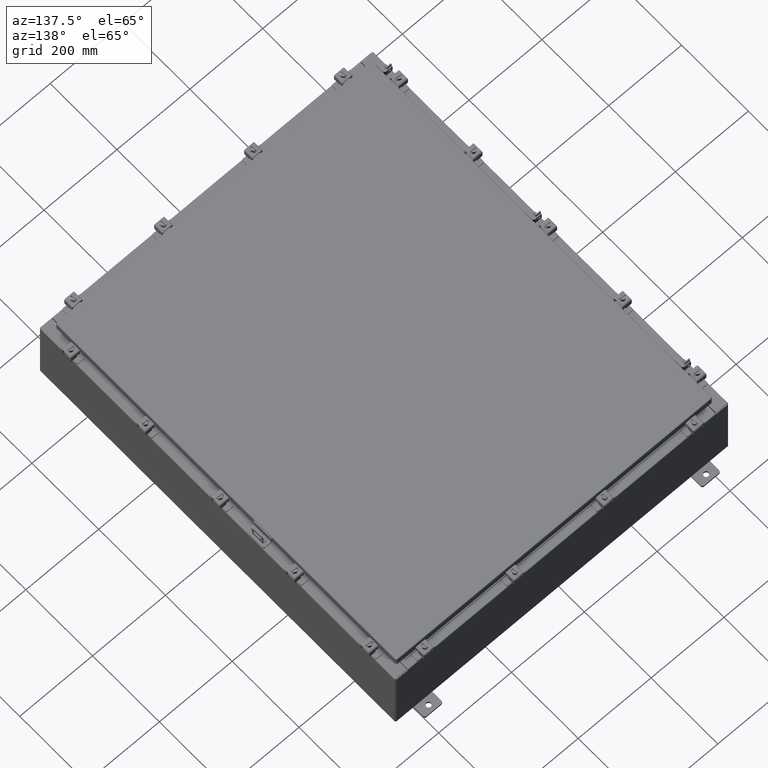
[diagram: clean part render]
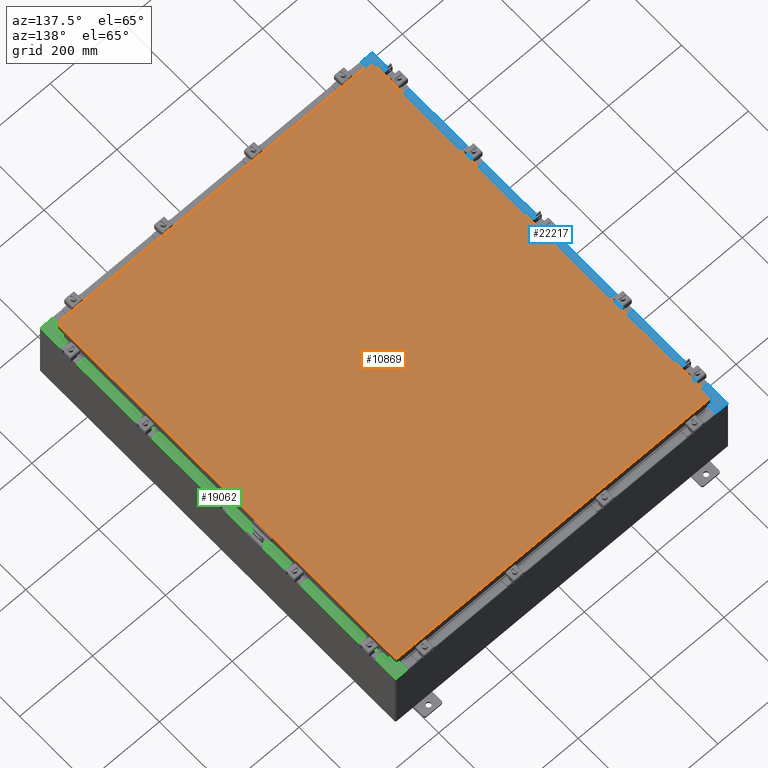
[diagram: same view with three faces highlighted in distinct colors, each labeled with its STEP entity id]
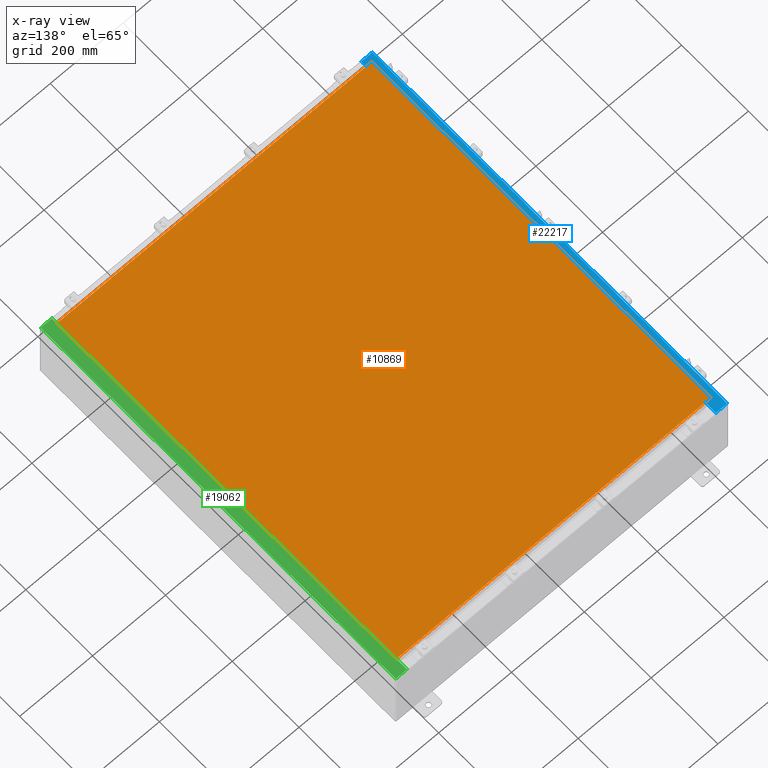
[diagram: x-ray of the same camera — body ghosted, the three highlighted faces saturated]
A machine part, auxiliary view with three faces highlighted in distinct colors.
The next image is the same camera in x-ray (body ghosted, the three faces saturated) — at least one of them is partly hidden behind the body in this view.
Their STEP definitions:

[orange] entity #10869 — the highlighted planar face has unit normal (0, 0, -1).
#180 = DIRECTION ( 'NONE',  ( 0.0000000000000000000, -1.000000000000000000, 0.0000000000000000000 ) ) ;
#733 = ORIENTED_EDGE ( 'NONE', *, *, #21136, .T. ) ;
#1266 = DIRECTION ( 'NONE',  ( -1.000000000000000000, -0.0000000000000000000, -0.0000000000000000000 ) ) ;
#1399 = DIRECTION ( 'NONE',  ( 1.000000000000000000, -0.0000000000000000000, -0.0000000000000000000 ) ) ;
#1971 = CARTESIAN_POINT ( 'NONE',  ( 16.99029999999999800, -20.00630000000000300, -2.048885995248197400E-016 ) ) ;
#2619 = EDGE_LOOP ( 'NONE', ( #23379, #733, #11995, #19405 ) ) ;
#5185 = CARTESIAN_POINT ( 'NONE',  ( 0.0000000000000000000, 0.0000000000000000000, 0.0000000000000000000 ) ) ;
#5270 = DIRECTION ( 'NONE',  ( -1.000000000000000000, 0.0000000000000000000, -0.0000000000000000000 ) ) ;
#5436 = LINE ( 'NONE', #13845, #9754 ) ;
#5627 = CARTESIAN_POINT ( 'NONE',  ( -16.99029999999999800, -20.00630000000000300, -2.364755919515627700E-015 ) ) ;
#6271 = DIRECTION ( 'NONE',  ( 0.0000000000000000000, 1.000000000000000000, 0.0000000000000000000 ) ) ;
#6461 = CARTESIAN_POINT ( 'NONE',  ( -16.99030000000000100, 20.00630000000000300, -2.048885995248197400E-016 ) ) ;
#9665 = EDGE_CURVE ( 'NONE', #15693, #11063, #16256, .T. ) ;
#9754 = VECTOR ( 'NONE', #1266, 39.37007874015748100 ) ;
#9809 = LINE ( 'NONE', #18979, #21070 ) ;
#10869 = ADVANCED_FACE ( 'NONE', ( #24115 ), #15851, .F. ) ;
#11063 = VERTEX_POINT ( 'NONE', #5627 ) ;
#11995 = ORIENTED_EDGE ( 'NONE', *, *, #22194, .T. ) ;
#12971 = EDGE_CURVE ( 'NONE', #11063, #16550, #21131, .T. ) ;
#13845 = CARTESIAN_POINT ( 'NONE',  ( 16.99029999999999800, 20.00630000000000700, 1.946441695485787500E-015 ) ) ;
#15693 = VERTEX_POINT ( 'NONE', #24827 ) ;
#15851 = PLANE ( 'NONE',  #17495 ) ;
#16130 = CARTESIAN_POINT ( 'NONE',  ( -16.99029999999999400, -20.00630000000000300, -2.373292944495828600E-015 ) ) ;
#16256 = LINE ( 'NONE', #6461, #21893 ) ;
#16550 = VERTEX_POINT ( 'NONE', #1971 ) ;
#17495 = AXIS2_PLACEMENT_3D ( 'NONE', #5185, #17936, #5270 ) ;
#17936 = DIRECTION ( 'NONE',  ( 0.0000000000000000000, 0.0000000000000000000, -1.000000000000000000 ) ) ;
#18979 = CARTESIAN_POINT ( 'NONE',  ( 16.99029999999999800, -20.00630000000000300, -2.048885995248197400E-016 ) ) ;
#19273 = VERTEX_POINT ( 'NONE', #23383 ) ;
#19405 = ORIENTED_EDGE ( 'NONE', *, *, #9665, .T. ) ;
#21070 = VECTOR ( 'NONE', #6271, 39.37007874015748100 ) ;
#21131 = LINE ( 'NONE', #16130, #26030 ) ;
#21136 = EDGE_CURVE ( 'NONE', #16550, #19273, #9809, .T. ) ;
#21893 = VECTOR ( 'NONE', #180, 39.37007874015748100 ) ;
#22194 = EDGE_CURVE ( 'NONE', #19273, #15693, #5436, .T. ) ;
#23379 = ORIENTED_EDGE ( 'NONE', *, *, #12971, .T. ) ;
#23383 = CARTESIAN_POINT ( 'NONE',  ( 16.99029999999999800, 20.00630000000000700, 1.946441695485787500E-015 ) ) ;
#24115 = FACE_OUTER_BOUND ( 'NONE', #2619, .T. ) ;
#24827 = CARTESIAN_POINT ( 'NONE',  ( -16.99030000000000100, 20.00630000000000300, -2.048885995248197400E-016 ) ) ;
#26030 = VECTOR ( 'NONE', #1399, 39.37007874015748100 ) ;

[blue] entity #22217 — the highlighted planar face has unit normal (0, 0, -1).
#235 = DIRECTION ( 'NONE',  ( -1.000000000000000000, 0.0000000000000000000, 0.0000000000000000000 ) ) ;
#305 = CARTESIAN_POINT ( 'NONE',  ( -16.71270000000003000, -19.59374999999999300, 7.925300000000008900 ) ) ;
#345 = CARTESIAN_POINT ( 'NONE',  ( -5.679009539018325600E-014, 20.92529999999999600, 7.925300000000127900 ) ) ;
#538 = LINE ( 'NONE', #8412, #22310 ) ;
#871 = ORIENTED_EDGE ( 'NONE', *, *, #22894, .F. ) ;
#928 = VERTEX_POINT ( 'NONE', #2441 ) ;
#1257 = EDGE_CURVE ( 'NONE', #18537, #23749, #13633, .T. ) ;
#1956 = EDGE_CURVE ( 'NONE', #928, #5209, #20232, .T. ) ;
#2363 = CARTESIAN_POINT ( 'NONE',  ( -16.75005000000003000, -19.61242499999999100, 7.925300000000008900 ) ) ;
#2441 = CARTESIAN_POINT ( 'NONE',  ( -17.91230000000002300, -20.92529999999999300, 7.925300000000000000 ) ) ;
#2488 = CARTESIAN_POINT ( 'NONE',  ( -1.314176917633203400E-013, -20.92530000000006000, 7.925300000000127900 ) ) ;
#2650 = ORIENTED_EDGE ( 'NONE', *, *, #6309, .F. ) ;
#2762 = ORIENTED_EDGE ( 'NONE', *, *, #18153, .F. ) ;
#3736 = CARTESIAN_POINT ( 'NONE',  ( -16.71270000000003000, -19.59374999999999300, 7.925300000000008900 ) ) ;
#4119 = FACE_OUTER_BOUND ( 'NONE', #11708, .T. ) ;
#4421 = DIRECTION ( 'NONE',  ( 1.000000000000000000, 0.0000000000000000000, 0.0000000000000000000 ) ) ;
#4761 = ORIENTED_EDGE ( 'NONE', *, *, #1257, .F. ) ;
#4810 = ORIENTED_EDGE ( 'NONE', *, *, #6284, .F. ) ;
#4910 = CARTESIAN_POINT ( 'NONE',  ( -16.75005000000003000, -19.59374999999999300, 7.925300000000008900 ) ) ;
#5209 = VERTEX_POINT ( 'NONE', #10616 ) ;
#5518 = DIRECTION ( 'NONE',  ( -1.000000000000000000, 0.0000000000000000000, -7.132762385546384700E-015 ) ) ;
#6066 = CARTESIAN_POINT ( 'NONE',  ( -16.69970000000002800, -19.63109999999999300, 7.925300000000008900 ) ) ;
#6284 = EDGE_CURVE ( 'NONE', #23749, #7867, #25603, .T. ) ;
#6309 = EDGE_CURVE ( 'NONE', #7867, #17105, #8771, .T. ) ;
#6899 = DIRECTION ( 'NONE',  ( 0.0000000000000000000, 1.000000000000000000, 0.0000000000000000000 ) ) ;
#7171 = EDGE_CURVE ( 'NONE', #13147, #22691, #13345, .T. ) ;
#7566 = CARTESIAN_POINT ( 'NONE',  ( -5.679009539018325600E-014, 0.0000000000000000000, 7.925300000000127900 ) ) ;
#7867 = VERTEX_POINT ( 'NONE', #3736 ) ;
#8105 = VECTOR ( 'NONE', #10560, 39.37007874015748100 ) ;
#8152 = CARTESIAN_POINT ( 'NONE',  ( -16.71270000000003000, 19.59374999999999600, 7.925300000000008900 ) ) ;
#8412 = CARTESIAN_POINT ( 'NONE',  ( -16.69970000000002800, 19.63109999999999300, 7.925300000000008900 ) ) ;
#8748 = EDGE_CURVE ( 'NONE', #22691, #19318, #19559, .T. ) ;
#8771 = LINE ( 'NONE', #305, #24941 ) ;
#8845 = EDGE_CURVE ( 'NONE', #5209, #15766, #22551, .T. ) ;
#9352 = ORIENTED_EDGE ( 'NONE', *, *, #23480, .F. ) ;
#10560 = DIRECTION ( 'NONE',  ( -0.0000000000000000000, 1.000000000000000000, -0.0000000000000000000 ) ) ;
#10616 = CARTESIAN_POINT ( 'NONE',  ( -16.69970000000002800, -20.92529999999999300, 7.925300000000008900 ) ) ;
#11061 = CARTESIAN_POINT ( 'NONE',  ( -16.69970000000002800, 0.0000000000000000000, 7.925300000000008900 ) ) ;
#11708 = EDGE_LOOP ( 'NONE', ( #9352, #15739, #22733, #871, #19717, #18560, #2762, #25499, #2650, #4810, #4761, #22689 ) ) ;
#11721 = DIRECTION ( 'NONE',  ( -7.132762385546384700E-015, -0.0000000000000000000, 1.000000000000000000 ) ) ;
#11793 = PLANE ( 'NONE',  #11951 ) ;
#11951 = AXIS2_PLACEMENT_3D ( 'NONE', #7566, #18180, #5518 ) ;
#12182 = DIRECTION ( 'NONE',  ( -0.0000000000000000000, -1.000000000000000000, -0.0000000000000000000 ) ) ;
#12496 = CARTESIAN_POINT ( 'NONE',  ( -16.69970000000002800, 19.63109999999999300, 7.925300000000008900 ) ) ;
#12526 = CIRCLE ( 'NONE', #24279, 0.01867499999999949400 ) ;
#12737 = AXIS2_PLACEMENT_3D ( 'NONE', #24381, #11721, #26487 ) ;
#13147 = VERTEX_POINT ( 'NONE', #12496 ) ;
#13345 = LINE ( 'NONE', #22687, #18987 ) ;
#13375 = DIRECTION ( 'NONE',  ( 1.000000000000000000, 0.0000000000000000000, 0.0000000000000000000 ) ) ;
#13633 = LINE ( 'NONE', #19242, #23552 ) ;
#13892 = LINE ( 'NONE', #15515, #20190 ) ;
#14087 = CARTESIAN_POINT ( 'NONE',  ( -16.69970000000002800, 20.92529999999999600, 7.925300000000008900 ) ) ;
#14601 = VECTOR ( 'NONE', #26579, 39.37007874015748100 ) ;
#14609 = VECTOR ( 'NONE', #19304, 39.37007874015748100 ) ;
#15515 = CARTESIAN_POINT ( 'NONE',  ( -16.75005000000003000, -19.63109999999999300, 7.925300000000008900 ) ) ;
#15572 = EDGE_CURVE ( 'NONE', #18457, #18537, #18994, .T. ) ;
#15739 = ORIENTED_EDGE ( 'NONE', *, *, #7171, .T. ) ;
#15766 = VERTEX_POINT ( 'NONE', #6066 ) ;
#17086 = DIRECTION ( 'NONE',  ( -7.132762385546384700E-015, -0.0000000000000000000, 1.000000000000000000 ) ) ;
#17105 = VERTEX_POINT ( 'NONE', #4910 ) ;
#17457 = CARTESIAN_POINT ( 'NONE',  ( -16.71270000000003000, 19.59374999999999600, 7.925300000000008900 ) ) ;
#17557 = VECTOR ( 'NONE', #6899, 39.37007874015748100 ) ;
#18153 = EDGE_CURVE ( 'NONE', #18655, #15766, #13892, .T. ) ;
#18180 = DIRECTION ( 'NONE',  ( 7.132762385546384700E-015, 0.0000000000000000000, -1.000000000000000000 ) ) ;
#18457 = VERTEX_POINT ( 'NONE', #20666 ) ;
#18537 = VERTEX_POINT ( 'NONE', #23151 ) ;
#18560 = ORIENTED_EDGE ( 'NONE', *, *, #8845, .T. ) ;
#18655 = VERTEX_POINT ( 'NONE', #25602 ) ;
#18987 = VECTOR ( 'NONE', #22424, 39.37007874015748100 ) ;
#18994 = CIRCLE ( 'NONE', #12737, 0.01867499999999949400 ) ;
#19242 = CARTESIAN_POINT ( 'NONE',  ( -16.75005000000003000, 19.59374999999999600, 7.925300000000008900 ) ) ;
#19281 = EDGE_CURVE ( 'NONE', #17105, #18655, #12526, .T. ) ;
#19304 = DIRECTION ( 'NONE',  ( -1.000000000000000000, 0.0000000000000000000, -7.132762385546384700E-015 ) ) ;
#19318 = VERTEX_POINT ( 'NONE', #25221 ) ;
#19353 = VECTOR ( 'NONE', #12182, 39.37007874015748100 ) ;
#19559 = LINE ( 'NONE', #345, #14609 ) ;
#19717 = ORIENTED_EDGE ( 'NONE', *, *, #1956, .T. ) ;
#20190 = VECTOR ( 'NONE', #23797, 39.37007874015748100 ) ;
#20232 = LINE ( 'NONE', #2488, #14601 ) ;
#20666 = CARTESIAN_POINT ( 'NONE',  ( -16.75005000000003000, 19.63109999999999300, 7.925300000000008900 ) ) ;
#22217 = ADVANCED_FACE ( 'NONE', ( #4119 ), #11793, .F. ) ;
#22310 = VECTOR ( 'NONE', #23208, 39.37007874015748100 ) ;
#22424 = DIRECTION ( 'NONE',  ( 0.0000000000000000000, 1.000000000000000000, 0.0000000000000000000 ) ) ;
#22551 = LINE ( 'NONE', #11061, #17557 ) ;
#22687 = CARTESIAN_POINT ( 'NONE',  ( -16.69970000000002800, 0.0000000000000000000, 7.925300000000008900 ) ) ;
#22689 = ORIENTED_EDGE ( 'NONE', *, *, #15572, .F. ) ;
#22691 = VERTEX_POINT ( 'NONE', #14087 ) ;
#22733 = ORIENTED_EDGE ( 'NONE', *, *, #8748, .T. ) ;
#22894 = EDGE_CURVE ( 'NONE', #928, #19318, #24286, .T. ) ;
#23151 = CARTESIAN_POINT ( 'NONE',  ( -16.75005000000003000, 19.59374999999999600, 7.925300000000008900 ) ) ;
#23208 = DIRECTION ( 'NONE',  ( -1.000000000000000000, 0.0000000000000000000, 0.0000000000000000000 ) ) ;
#23224 = CARTESIAN_POINT ( 'NONE',  ( -17.91230000000002300, 20.92529999999999600, 7.925300000000000000 ) ) ;
#23480 = EDGE_CURVE ( 'NONE', #13147, #18457, #538, .T. ) ;
#23552 = VECTOR ( 'NONE', #13375, 39.37007874015748100 ) ;
#23749 = VERTEX_POINT ( 'NONE', #17457 ) ;
#23797 = DIRECTION ( 'NONE',  ( 1.000000000000000000, 0.0000000000000000000, 0.0000000000000000000 ) ) ;
#24279 = AXIS2_PLACEMENT_3D ( 'NONE', #2363, #17086, #4421 ) ;
#24286 = LINE ( 'NONE', #23224, #8105 ) ;
#24381 = CARTESIAN_POINT ( 'NONE',  ( -16.75005000000003000, 19.61242499999999500, 7.925300000000008900 ) ) ;
#24941 = VECTOR ( 'NONE', #235, 39.37007874015748100 ) ;
#25221 = CARTESIAN_POINT ( 'NONE',  ( -17.91230000000002300, 20.92529999999999600, 7.925300000000000000 ) ) ;
#25499 = ORIENTED_EDGE ( 'NONE', *, *, #19281, .F. ) ;
#25602 = CARTESIAN_POINT ( 'NONE',  ( -16.75005000000003000, -19.63109999999999300, 7.925300000000008900 ) ) ;
#25603 = LINE ( 'NONE', #8152, #19353 ) ;
#26487 = DIRECTION ( 'NONE',  ( 1.000000000000000000, 0.0000000000000000000, 0.0000000000000000000 ) ) ;
#26579 = DIRECTION ( 'NONE',  ( 1.000000000000000000, -3.566381192773192400E-015, 7.132762385546384700E-015 ) ) ;

[green] entity #19062 — the highlighted planar face has unit normal (-0, -0, -1).
#167 = VERTEX_POINT ( 'NONE', #20693 ) ;
#303 = VECTOR ( 'NONE', #18661, 39.37007874015748100 ) ;
#833 = LINE ( 'NONE', #20563, #16303 ) ;
#968 = DIRECTION ( 'NONE',  ( 1.000000000000000000, 0.0000000000000000000, 0.0000000000000000000 ) ) ;
#1202 = CARTESIAN_POINT ( 'NONE',  ( 17.91230000000002700, -20.92529999999999600, 7.925300000000000900 ) ) ;
#1281 = VERTEX_POINT ( 'NONE', #20794 ) ;
#1650 = CARTESIAN_POINT ( 'NONE',  ( 16.69970000000003200, 20.92529999999997900, 7.925300000000008900 ) ) ;
#1662 = PLANE ( 'NONE',  #8719 ) ;
#1855 = AXIS2_PLACEMENT_3D ( 'NONE', #26166, #13551, #968 ) ;
#2885 = EDGE_LOOP ( 'NONE', ( #3383, #10789, #5510, #21695, #18417, #23769, #21611, #12431, #3264, #8092, #5178, #11448 ) ) ;
#3048 = LINE ( 'NONE', #25284, #14258 ) ;
#3264 = ORIENTED_EDGE ( 'NONE', *, *, #5108, .F. ) ;
#3383 = ORIENTED_EDGE ( 'NONE', *, *, #7701, .F. ) ;
#3971 = EDGE_CURVE ( 'NONE', #10474, #4957, #18480, .T. ) ;
#4554 = LINE ( 'NONE', #8333, #26353 ) ;
#4846 = CARTESIAN_POINT ( 'NONE',  ( 16.75005000000003400, -19.61242499999999800, 7.925300000000009800 ) ) ;
#4957 = VERTEX_POINT ( 'NONE', #1650 ) ;
#5108 = EDGE_CURVE ( 'NONE', #13108, #20685, #22728, .T. ) ;
#5178 = ORIENTED_EDGE ( 'NONE', *, *, #15084, .F. ) ;
#5183 = VERTEX_POINT ( 'NONE', #6274 ) ;
#5510 = ORIENTED_EDGE ( 'NONE', *, *, #7850, .T. ) ;
#5808 = CARTESIAN_POINT ( 'NONE',  ( 4.972393517341169600E-014, 2.069333763834946700E-016, 7.925300000000111900 ) ) ;
#6133 = CARTESIAN_POINT ( 'NONE',  ( 16.75005000000003400, 19.59374999999998200, 7.925300000000007100 ) ) ;
#6274 = CARTESIAN_POINT ( 'NONE',  ( 16.75005000000003400, -19.63109999999999600, 7.925300000000008900 ) ) ;
#6506 = DIRECTION ( 'NONE',  ( 1.000000000000000000, 4.340572780399910900E-014, 2.170286390199955400E-014 ) ) ;
#6522 = VECTOR ( 'NONE', #24241, 39.37007874015748100 ) ;
#6973 = DIRECTION ( 'NONE',  ( 1.000000000000000000, 0.0000000000000000000, 0.0000000000000000000 ) ) ;
#7099 = DIRECTION ( 'NONE',  ( -1.000000000000000000, 0.0000000000000000000, 6.241167087353087800E-015 ) ) ;
#7233 = FACE_OUTER_BOUND ( 'NONE', #2885, .T. ) ;
#7454 = CARTESIAN_POINT ( 'NONE',  ( 4.972393517341169600E-014, 20.92529999999998600, 7.925300000000111900 ) ) ;
#7701 = EDGE_CURVE ( 'NONE', #19096, #5183, #20291, .T. ) ;
#7850 = EDGE_CURVE ( 'NONE', #167, #15550, #833, .T. ) ;
#7957 = DIRECTION ( 'NONE',  ( -1.000000000000000000, 0.0000000000000000000, 6.241167087353086200E-015 ) ) ;
#8092 = ORIENTED_EDGE ( 'NONE', *, *, #14021, .F. ) ;
#8145 = CARTESIAN_POINT ( 'NONE',  ( 16.71270000000003400, 19.59374999999998200, 7.925300000000009800 ) ) ;
#8333 = CARTESIAN_POINT ( 'NONE',  ( 16.69970000000003200, 2.069333763834919300E-016, 7.925300000000008900 ) ) ;
#8655 = CARTESIAN_POINT ( 'NONE',  ( 16.69970000000003200, -19.63110000000000000, 7.925300000000008900 ) ) ;
#8719 = AXIS2_PLACEMENT_3D ( 'NONE', #5808, #20634, #7957 ) ;
#8944 = CIRCLE ( 'NONE', #22183, 0.01867499999999949400 ) ;
#9146 = LINE ( 'NONE', #14594, #19073 ) ;
#10474 = VERTEX_POINT ( 'NONE', #20942 ) ;
#10789 = ORIENTED_EDGE ( 'NONE', *, *, #13212, .T. ) ;
#11448 = ORIENTED_EDGE ( 'NONE', *, *, #18110, .F. ) ;
#11592 = CARTESIAN_POINT ( 'NONE',  ( 16.75005000000003400, 19.63109999999998200, 7.925300000000009800 ) ) ;
#11654 = EDGE_CURVE ( 'NONE', #4957, #1281, #17149, .T. ) ;
#12239 = EDGE_CURVE ( 'NONE', #13760, #1281, #27013, .T. ) ;
#12431 = ORIENTED_EDGE ( 'NONE', *, *, #18173, .F. ) ;
#12872 = VECTOR ( 'NONE', #7099, 39.37007874015748100 ) ;
#13108 = VERTEX_POINT ( 'NONE', #8145 ) ;
#13212 = EDGE_CURVE ( 'NONE', #19096, #167, #4554, .T. ) ;
#13551 = DIRECTION ( 'NONE',  ( 6.241167087353086200E-015, 2.611047864225855500E-017, 1.000000000000000000 ) ) ;
#13760 = VERTEX_POINT ( 'NONE', #24197 ) ;
#14021 = EDGE_CURVE ( 'NONE', #17467, #13108, #9146, .T. ) ;
#14258 = VECTOR ( 'NONE', #23196, 39.37007874015748100 ) ;
#14436 = CARTESIAN_POINT ( 'NONE',  ( 16.71270000000003400, -19.59375000000000000, 7.925300000000009800 ) ) ;
#14594 = CARTESIAN_POINT ( 'NONE',  ( 16.71270000000003400, -19.59375000000000000, 7.925300000000009800 ) ) ;
#14870 = CARTESIAN_POINT ( 'NONE',  ( 16.71270000000003400, 19.59374999999998200, 7.925300000000009800 ) ) ;
#15084 = EDGE_CURVE ( 'NONE', #23362, #17467, #23299, .T. ) ;
#15550 = VERTEX_POINT ( 'NONE', #1202 ) ;
#16303 = VECTOR ( 'NONE', #16388, 39.37007874015748100 ) ;
#16388 = DIRECTION ( 'NONE',  ( 1.000000000000000000, 0.0000000000000000000, -6.241167087353087800E-015 ) ) ;
#17149 = LINE ( 'NONE', #23905, #22800 ) ;
#17467 = VERTEX_POINT ( 'NONE', #14436 ) ;
#17673 = VECTOR ( 'NONE', #20756, 39.37007874015748100 ) ;
#18110 = EDGE_CURVE ( 'NONE', #5183, #23362, #8944, .T. ) ;
#18173 = EDGE_CURVE ( 'NONE', #20685, #13760, #18186, .T. ) ;
#18186 = CIRCLE ( 'NONE', #1855, 0.01867499999999949400 ) ;
#18417 = ORIENTED_EDGE ( 'NONE', *, *, #3971, .T. ) ;
#18480 = LINE ( 'NONE', #7454, #12872 ) ;
#18661 = DIRECTION ( 'NONE',  ( 1.000000000000000000, 0.0000000000000000000, 0.0000000000000000000 ) ) ;
#19062 = ADVANCED_FACE ( 'NONE', ( #7233 ), #1662, .F. ) ;
#19073 = VECTOR ( 'NONE', #23105, 39.37007874015748100 ) ;
#19096 = VERTEX_POINT ( 'NONE', #24934 ) ;
#19609 = VECTOR ( 'NONE', #6506, 39.37007874015748100 ) ;
#19644 = DIRECTION ( 'NONE',  ( 6.241167087353086200E-015, 2.611047864225855500E-017, 1.000000000000000000 ) ) ;
#20291 = LINE ( 'NONE', #8655, #19609 ) ;
#20563 = CARTESIAN_POINT ( 'NONE',  ( 4.972393517341169600E-014, -20.92529999999999600, 7.925300000000113700 ) ) ;
#20634 = DIRECTION ( 'NONE',  ( -6.241167087353086200E-015, -2.611047864225855500E-017, -1.000000000000000000 ) ) ;
#20685 = VERTEX_POINT ( 'NONE', #6133 ) ;
#20693 = CARTESIAN_POINT ( 'NONE',  ( 16.69970000000003200, -20.92529999999999600, 7.925300000000009800 ) ) ;
#20756 = DIRECTION ( 'NONE',  ( -1.000000000000000000, 0.0000000000000000000, 0.0000000000000000000 ) ) ;
#20794 = CARTESIAN_POINT ( 'NONE',  ( 16.69970000000003200, 19.63109999999997500, 7.925300000000008900 ) ) ;
#20942 = CARTESIAN_POINT ( 'NONE',  ( 17.91230000000002700, 20.92529999999997500, 7.925300000000000000 ) ) ;
#21112 = DIRECTION ( 'NONE',  ( 0.0000000000000000000, -1.000000000000000000, 2.611047864225856100E-017 ) ) ;
#21611 = ORIENTED_EDGE ( 'NONE', *, *, #12239, .F. ) ;
#21695 = ORIENTED_EDGE ( 'NONE', *, *, #25682, .F. ) ;
#22183 = AXIS2_PLACEMENT_3D ( 'NONE', #4846, #19644, #6973 ) ;
#22728 = LINE ( 'NONE', #14870, #303 ) ;
#22800 = VECTOR ( 'NONE', #25919, 39.37007874015748100 ) ;
#22854 = CARTESIAN_POINT ( 'NONE',  ( 16.75005000000003400, -19.59375000000000000, 7.925300000000007100 ) ) ;
#23105 = DIRECTION ( 'NONE',  ( -0.0000000000000000000, 1.000000000000000000, -0.0000000000000000000 ) ) ;
#23196 = DIRECTION ( 'NONE',  ( -0.0000000000000000000, -1.000000000000000000, 2.611047864225856100E-017 ) ) ;
#23299 = LINE ( 'NONE', #24857, #17673 ) ;
#23362 = VERTEX_POINT ( 'NONE', #22854 ) ;
#23769 = ORIENTED_EDGE ( 'NONE', *, *, #11654, .T. ) ;
#23905 = CARTESIAN_POINT ( 'NONE',  ( 16.69970000000003200, 2.069333763834919300E-016, 7.925300000000008900 ) ) ;
#24197 = CARTESIAN_POINT ( 'NONE',  ( 16.75005000000003400, 19.63109999999998200, 7.925300000000007100 ) ) ;
#24241 = DIRECTION ( 'NONE',  ( -1.000000000000000000, 4.340572780399910900E-014, -2.170286390199955400E-014 ) ) ;
#24857 = CARTESIAN_POINT ( 'NONE',  ( 16.75005000000003400, -19.59375000000000000, 7.925300000000009800 ) ) ;
#24934 = CARTESIAN_POINT ( 'NONE',  ( 16.69970000000003200, -19.63110000000000000, 7.925300000000008900 ) ) ;
#25284 = CARTESIAN_POINT ( 'NONE',  ( 17.91230000000002700, -20.92529999999999600, 7.925300000000000900 ) ) ;
#25682 = EDGE_CURVE ( 'NONE', #10474, #15550, #3048, .T. ) ;
#25919 = DIRECTION ( 'NONE',  ( 0.0000000000000000000, -1.000000000000000000, 2.611047864225856100E-017 ) ) ;
#26166 = CARTESIAN_POINT ( 'NONE',  ( 16.75005000000003400, 19.61242499999998000, 7.925300000000009800 ) ) ;
#26353 = VECTOR ( 'NONE', #21112, 39.37007874015748100 ) ;
#27013 = LINE ( 'NONE', #11592, #6522 ) ;